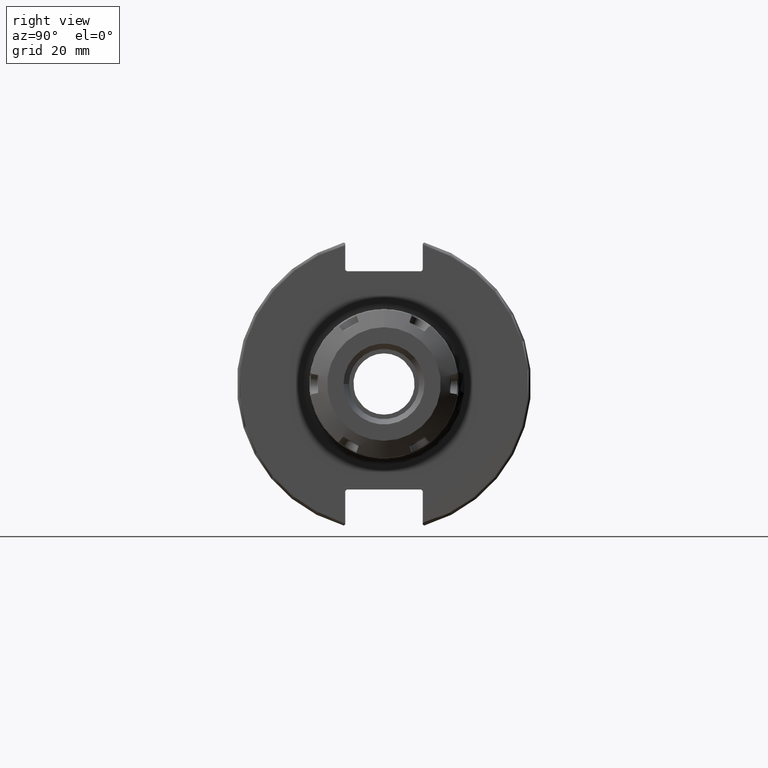
[diagram: clean part render]
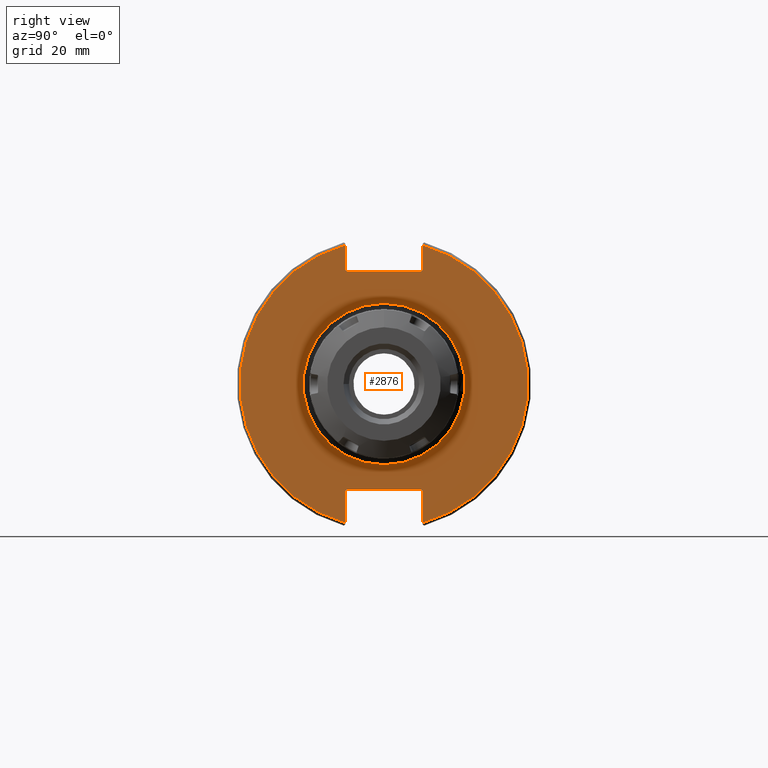
[diagram: same view with one face highlighted and labeled with its STEP entity id]
A machine part, right view. The second image highlights one B-rep face of the part: STEP entity #2876.
In plain terms, the highlighted planar face has unit normal (1, 0, 0).
Its self-contained STEP definition (entity closure, byte-faithful):
#311=FACE_BOUND('',#590,.T.);
#335=PLANE('',#3143);
#415=FACE_OUTER_BOUND('',#589,.T.);
#589=EDGE_LOOP('',(#2024,#2025,#2026,#2027,#2028,#2029,#2030,#2031,#2032,
#2033,#2034,#2035));
#590=EDGE_LOOP('',(#2036));
#776=LINE('',#4347,#951);
#777=LINE('',#4349,#952);
#778=LINE('',#4351,#953);
#779=LINE('',#4353,#954);
#780=LINE('',#4355,#955);
#781=LINE('',#4359,#956);
#782=LINE('',#4361,#957);
#783=LINE('',#4363,#958);
#784=LINE('',#4365,#959);
#785=LINE('',#4366,#960);
#951=VECTOR('',#3494,10.);
#952=VECTOR('',#3495,10.);
#953=VECTOR('',#3496,10.);
#954=VECTOR('',#3497,10.);
#955=VECTOR('',#3498,10.);
#956=VECTOR('',#3501,10.);
#957=VECTOR('',#3502,10.);
#958=VECTOR('',#3503,10.);
#959=VECTOR('',#3504,10.);
#960=VECTOR('',#3505,10.);
#1142=CIRCLE('',#3142,27.);
#1143=CIRCLE('',#3144,48.2125);
#1144=CIRCLE('',#3145,48.2125);
#1280=VERTEX_POINT('',#4339);
#1281=VERTEX_POINT('',#4343);
#1282=VERTEX_POINT('',#4344);
#1283=VERTEX_POINT('',#4346);
#1284=VERTEX_POINT('',#4348);
#1285=VERTEX_POINT('',#4350);
#1286=VERTEX_POINT('',#4352);
#1287=VERTEX_POINT('',#4354);
#1288=VERTEX_POINT('',#4356);
#1289=VERTEX_POINT('',#4358);
#1290=VERTEX_POINT('',#4360);
#1291=VERTEX_POINT('',#4362);
#1292=VERTEX_POINT('',#4364);
#1570=EDGE_CURVE('',#1280,#1280,#1142,.T.);
#1571=EDGE_CURVE('',#1281,#1282,#1143,.T.);
#1572=EDGE_CURVE('',#1281,#1283,#776,.T.);
#1573=EDGE_CURVE('',#1284,#1283,#777,.T.);
#1574=EDGE_CURVE('',#1284,#1285,#778,.T.);
#1575=EDGE_CURVE('',#1286,#1285,#779,.T.);
#1576=EDGE_CURVE('',#1286,#1287,#780,.T.);
#1577=EDGE_CURVE('',#1288,#1287,#1144,.T.);
#1578=EDGE_CURVE('',#1288,#1289,#781,.T.);
#1579=EDGE_CURVE('',#1290,#1289,#782,.T.);
#1580=EDGE_CURVE('',#1290,#1291,#783,.T.);
#1581=EDGE_CURVE('',#1292,#1291,#784,.T.);
#1582=EDGE_CURVE('',#1292,#1282,#785,.T.);
#2024=ORIENTED_EDGE('',*,*,#1571,.F.);
#2025=ORIENTED_EDGE('',*,*,#1572,.T.);
#2026=ORIENTED_EDGE('',*,*,#1573,.F.);
#2027=ORIENTED_EDGE('',*,*,#1574,.T.);
#2028=ORIENTED_EDGE('',*,*,#1575,.F.);
#2029=ORIENTED_EDGE('',*,*,#1576,.T.);
#2030=ORIENTED_EDGE('',*,*,#1577,.F.);
#2031=ORIENTED_EDGE('',*,*,#1578,.T.);
#2032=ORIENTED_EDGE('',*,*,#1579,.F.);
#2033=ORIENTED_EDGE('',*,*,#1580,.T.);
#2034=ORIENTED_EDGE('',*,*,#1581,.F.);
#2035=ORIENTED_EDGE('',*,*,#1582,.T.);
#2036=ORIENTED_EDGE('',*,*,#1570,.F.);
#2876=ADVANCED_FACE('',(#415,#311),#335,.T.);
#3142=AXIS2_PLACEMENT_3D('',#4341,#3488,#3489);
#3143=AXIS2_PLACEMENT_3D('',#4342,#3490,#3491);
#3144=AXIS2_PLACEMENT_3D('',#4345,#3492,#3493);
#3145=AXIS2_PLACEMENT_3D('',#4357,#3499,#3500);
#3488=DIRECTION('center_axis',(1.,0.,0.));
#3489=DIRECTION('ref_axis',(0.,-1.,-1.22464679914735E-16));
#3490=DIRECTION('center_axis',(1.,0.,0.));
#3491=DIRECTION('ref_axis',(0.,0.,-1.));
#3492=DIRECTION('center_axis',(-1.,0.,0.));
#3493=DIRECTION('ref_axis',(0.,1.,-6.12323399573677E-17));
#3494=DIRECTION('',(0.,0.,-1.));
#3495=DIRECTION('',(0.,0.707106781186549,0.707106781186546));
#3496=DIRECTION('',(0.,-1.,0.));
#3497=DIRECTION('',(0.,0.707106781186549,-0.707106781186546));
#3498=DIRECTION('',(0.,0.,1.));
#3499=DIRECTION('center_axis',(-1.,0.,0.));
#3500=DIRECTION('ref_axis',(0.,-1.,1.60812264967664E-16));
#3501=DIRECTION('',(0.,0.,1.));
#3502=DIRECTION('',(0.,-0.707106781186549,-0.707106781186546));
#3503=DIRECTION('',(0.,1.,0.));
#3504=DIRECTION('',(0.,-0.707106781186549,0.707106781186546));
#3505=DIRECTION('',(0.,0.,-1.));
#4339=CARTESIAN_POINT('',(19.05,-3.30654635769785E-15,-27.));
#4341=CARTESIAN_POINT('Origin',(19.05,0.,0.));
#4342=CARTESIAN_POINT('Origin',(19.05,0.,0.));
#4343=CARTESIAN_POINT('',(19.05,12.95,46.4407434937254));
#4344=CARTESIAN_POINT('',(19.05,12.95,-46.4407434937254));
#4345=CARTESIAN_POINT('Origin',(19.05,0.,0.));
#4346=CARTESIAN_POINT('',(19.05,12.95,38.219));
#4347=CARTESIAN_POINT('',(19.05,12.95,18.8595));
#4348=CARTESIAN_POINT('',(19.05,12.45,37.719));
#4349=CARTESIAN_POINT('',(19.05,0.0327499999999836,25.30175));
#4350=CARTESIAN_POINT('',(19.05,-12.45,37.719));
#4351=CARTESIAN_POINT('',(19.05,0.,37.719));
#4352=CARTESIAN_POINT('',(19.05,-12.95,38.219));
#4353=CARTESIAN_POINT('',(19.05,-0.0327499999999817,25.30175));
#4354=CARTESIAN_POINT('',(19.05,-12.95,46.4407434937254));
#4355=CARTESIAN_POINT('',(19.05,-12.95,18.8595));
#4356=CARTESIAN_POINT('',(19.05,-12.95,-46.4407434937254));
#4357=CARTESIAN_POINT('Origin',(19.05,0.,0.));
#4358=CARTESIAN_POINT('',(19.05,-12.95,-35.806));
#4359=CARTESIAN_POINT('',(19.05,-12.95,-17.653));
#4360=CARTESIAN_POINT('',(19.05,-12.45,-35.306));
#4361=CARTESIAN_POINT('',(19.05,-0.635999999999989,-23.492));
#4362=CARTESIAN_POINT('',(19.05,12.45,-35.306));
#4363=CARTESIAN_POINT('',(19.05,-3.33066907387547E-15,-35.306));
#4364=CARTESIAN_POINT('',(19.05,12.95,-35.806));
#4365=CARTESIAN_POINT('',(19.05,0.635999999999982,-23.492));
#4366=CARTESIAN_POINT('',(19.05,12.95,-17.653));